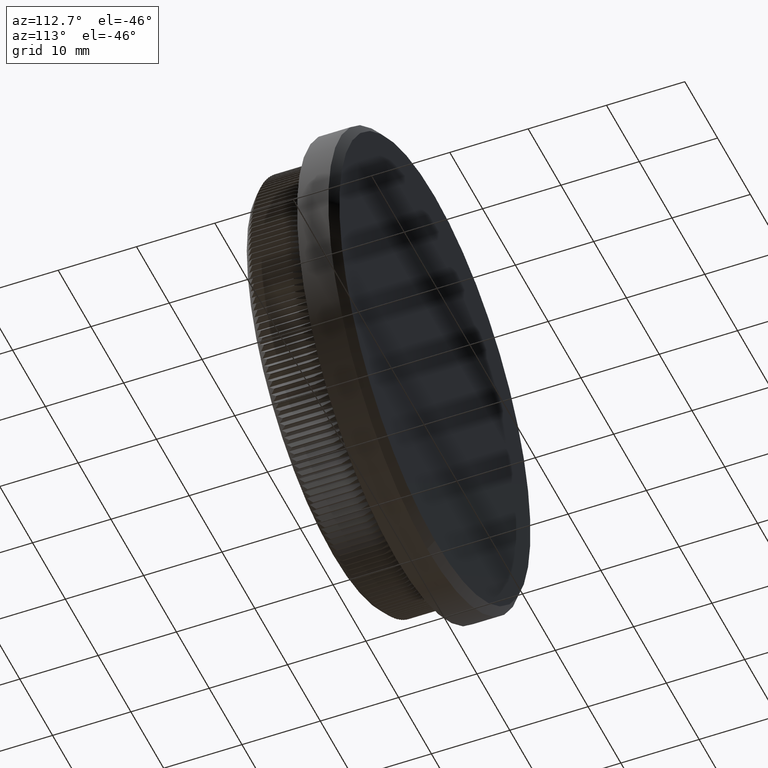
[diagram: clean part render]
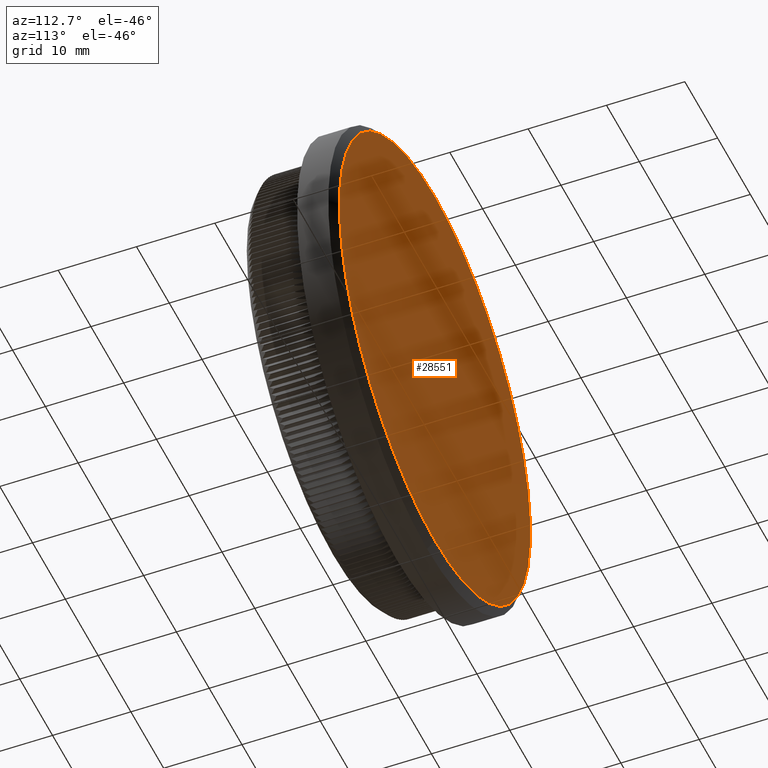
[diagram: same view with one face highlighted and labeled with its STEP entity id]
A machine part, auxiliary view. The second image highlights one B-rep face of the part: STEP entity #28551.
In plain terms, the highlighted planar face has unit normal (0, 1, 0).
Its self-contained STEP definition (entity closure, byte-faithful):
#2427 = PLANE ( 'NONE',  #37680 ) ;
#3608 = VERTEX_POINT ( 'NONE', #23192 ) ;
#3898 = EDGE_CURVE ( 'NONE', #3608, #5776, #14422, .T. ) ;
#4860 = EDGE_CURVE ( 'NONE', #5776, #3608, #23418, .T. ) ;
#5675 = CARTESIAN_POINT ( 'NONE',  ( 3.631077759471901245E-15, 13.00000000000000000, 29.14999999999998437 ) ) ;
#5776 = VERTEX_POINT ( 'NONE', #5675 ) ;
#6776 = EDGE_LOOP ( 'NONE', ( #38753, #15309 ) ) ;
#14422 = CIRCLE ( 'NONE', #20517, 29.14999999999998437 ) ;
#15309 = ORIENTED_EDGE ( 'NONE', *, *, #4860, .T. ) ;
#17996 = DIRECTION ( 'NONE',  ( 0.000000000000000000, 1.000000000000000000, 0.000000000000000000 ) ) ;
#20517 = AXIS2_PLACEMENT_3D ( 'NONE', #37470, #17996, #40412 ) ;
#21904 = DIRECTION ( 'NONE',  ( 0.000000000000000000, 1.000000000000000000, 0.000000000000000000 ) ) ;
#23192 = CARTESIAN_POINT ( 'NONE',  ( 0.000000000000000000, 13.00000000000000000, -29.14999999999998437 ) ) ;
#23418 = CIRCLE ( 'NONE', #27536, 29.14999999999998437 ) ;
#24716 = DIRECTION ( 'NONE',  ( 0.000000000000000000, -0.000000000000000000, 1.000000000000000000 ) ) ;
#27536 = AXIS2_PLACEMENT_3D ( 'NONE', #27731, #37661, #31234 ) ;
#27731 = CARTESIAN_POINT ( 'NONE',  ( 0.000000000000000000, 13.00000000000000000, 0.000000000000000000 ) ) ;
#28551 = ADVANCED_FACE ( 'NONE', ( #37428 ), #2427, .T. ) ;
#31234 = DIRECTION ( 'NONE',  ( 0.000000000000000000, 0.000000000000000000, 1.000000000000000000 ) ) ;
#37428 = FACE_OUTER_BOUND ( 'NONE', #6776, .T. ) ;
#37470 = CARTESIAN_POINT ( 'NONE',  ( 0.000000000000000000, 13.00000000000000000, 0.000000000000000000 ) ) ;
#37661 = DIRECTION ( 'NONE',  ( 0.000000000000000000, 1.000000000000000000, 0.000000000000000000 ) ) ;
#37680 = AXIS2_PLACEMENT_3D ( 'NONE', #40572, #21904, #24716 ) ;
#38753 = ORIENTED_EDGE ( 'NONE', *, *, #3898, .T. ) ;
#40412 = DIRECTION ( 'NONE',  ( 0.000000000000000000, 0.000000000000000000, 1.000000000000000000 ) ) ;
#40572 = CARTESIAN_POINT ( 'NONE',  ( 0.000000000000000000, 13.00000000000000000, 0.000000000000000000 ) ) ;